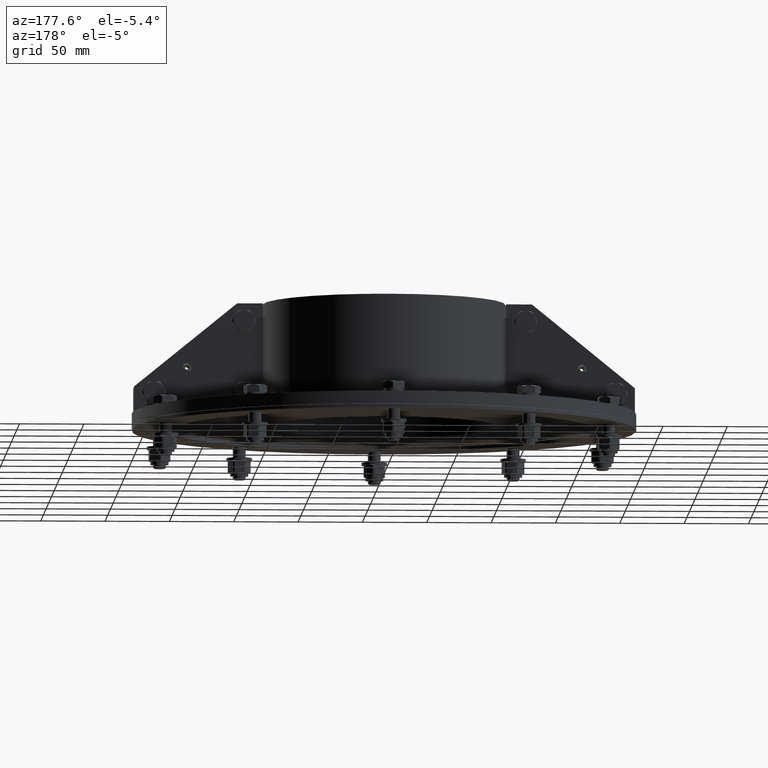
[diagram: clean part render]
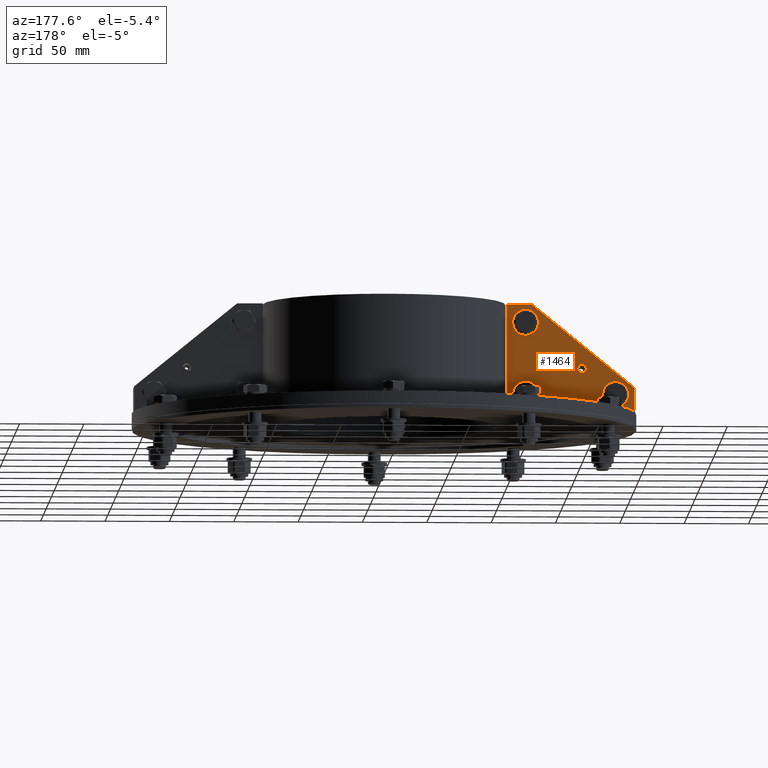
[diagram: same view with one face highlighted and labeled with its STEP entity id]
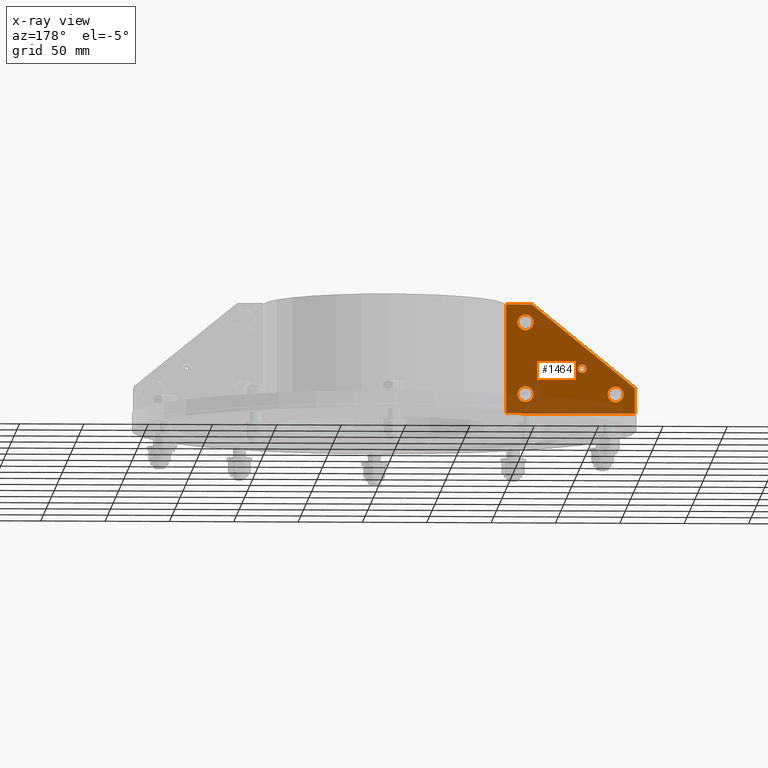
[diagram: x-ray of the same camera — body ghosted, the highlighted face saturated]
A machine part, auxiliary view. The second image highlights one B-rep face of the part: STEP entity #1464.
The next image is the same camera in x-ray: the body ghosted, the highlighted face saturated — about 20% of this face is hidden behind the body in this view.
In plain terms, the highlighted planar face has unit normal (-0, 1, 0).
Its self-contained STEP definition (entity closure, byte-faithful):
#1164=CARTESIAN_POINT('',(21.150000000000002,71.0,5.0));
#1165=VERTEX_POINT('',#1164);
#1166=CARTESIAN_POINT('',(15.0,71.0,5.0));
#1167=DIRECTION('',(0.0,0.0,-1.0));
#1168=DIRECTION('',(-1.0,0.0,0.0));
#1169=AXIS2_PLACEMENT_3D('',#1166,#1167,#1168);
#1170=CIRCLE('',#1169,6.150000000000001);
#1171=EDGE_CURVE('',#1165,#1165,#1170,.T.);
#1192=CARTESIAN_POINT('',(91.150000000000006,15.000000000000002,5.0));
#1193=VERTEX_POINT('',#1192);
#1194=CARTESIAN_POINT('',(85.0,15.000000000000002,5.0));
#1195=DIRECTION('',(0.0,0.0,-1.0));
#1196=DIRECTION('',(-1.0,0.0,0.0));
#1197=AXIS2_PLACEMENT_3D('',#1194,#1195,#1196);
#1198=CIRCLE('',#1197,6.150000000000001);
#1199=EDGE_CURVE('',#1193,#1193,#1198,.T.);
#1220=CARTESIAN_POINT('',(21.150000000000002,15.000000000000002,5.0));
#1221=VERTEX_POINT('',#1220);
#1222=CARTESIAN_POINT('',(15.0,15.000000000000002,5.0));
#1223=DIRECTION('',(0.0,0.0,-1.0));
#1224=DIRECTION('',(-1.0,0.0,0.0));
#1225=AXIS2_PLACEMENT_3D('',#1222,#1223,#1224);
#1226=CIRCLE('',#1225,6.150000000000001);
#1227=EDGE_CURVE('',#1221,#1221,#1226,.T.);
#1248=CARTESIAN_POINT('',(62.350000000000001,35.0,5.0));
#1249=VERTEX_POINT('',#1248);
#1250=CARTESIAN_POINT('',(59.0,35.0,5.0));
#1251=DIRECTION('',(0.0,0.0,-1.0));
#1252=DIRECTION('',(-1.0,0.0,0.0));
#1253=AXIS2_PLACEMENT_3D('',#1250,#1251,#1252);
#1254=CIRCLE('',#1253,3.35);
#1255=EDGE_CURVE('',#1249,#1249,#1254,.T.);
#1325=CARTESIAN_POINT('',(0.0,85.0,5.0));
#1326=VERTEX_POINT('',#1325);
#1327=CARTESIAN_POINT('',(20.0,85.0,5.0));
#1328=VERTEX_POINT('',#1327);
#1329=CARTESIAN_POINT('',(0.0,85.0,5.0));
#1330=DIRECTION('',(1.0,0.0,0.0));
#1331=VECTOR('',#1330,20.0);
#1332=LINE('',#1329,#1331);
#1333=EDGE_CURVE('',#1326,#1328,#1332,.T.);
#1356=CARTESIAN_POINT('',(100.0,20.000000000000018,5.0));
#1357=VERTEX_POINT('',#1356);
#1358=CARTESIAN_POINT('',(20.0,85.0,5.0));
#1359=DIRECTION('',(0.776114000116266,-0.630592625094466,0.0));
#1360=VECTOR('',#1359,103.0776406404415);
#1361=LINE('',#1358,#1360);
#1362=EDGE_CURVE('',#1328,#1357,#1361,.T.);
#1380=CARTESIAN_POINT('',(100.0,1.836970E-014,5.0));
#1381=VERTEX_POINT('',#1380);
#1382=CARTESIAN_POINT('',(100.0,20.000000000000018,5.0));
#1383=DIRECTION('',(0.0,-1.0,0.0));
#1384=VECTOR('',#1383,20.0);
#1385=LINE('',#1382,#1384);
#1386=EDGE_CURVE('',#1357,#1381,#1385,.T.);
#1404=CARTESIAN_POINT('',(0.0,0.0,5.0));
#1405=VERTEX_POINT('',#1404);
#1406=CARTESIAN_POINT('',(100.0,1.836970E-014,5.0));
#1407=DIRECTION('',(-1.0,0.0,0.0));
#1408=VECTOR('',#1407,100.0);
#1409=LINE('',#1406,#1408);
#1410=EDGE_CURVE('',#1381,#1405,#1409,.T.);
#1428=CARTESIAN_POINT('',(0.0,0.0,5.0));
#1429=DIRECTION('',(0.0,1.0,0.0));
#1430=VECTOR('',#1429,85.0);
#1431=LINE('',#1428,#1430);
#1432=EDGE_CURVE('',#1405,#1326,#1431,.T.);
#1440=CARTESIAN_POINT('',(40.797228400869528,33.297228400869542,5.0));
#1441=DIRECTION('',(0.0,0.0,1.0));
#1442=DIRECTION('',(1.0,0.0,0.0));
#1443=AXIS2_PLACEMENT_3D('',#1440,#1441,#1442);
#1444=PLANE('',#1443);
#1445=ORIENTED_EDGE('',*,*,#1333,.F.);
#1446=ORIENTED_EDGE('',*,*,#1432,.F.);
#1447=ORIENTED_EDGE('',*,*,#1410,.F.);
#1448=ORIENTED_EDGE('',*,*,#1386,.F.);
#1449=ORIENTED_EDGE('',*,*,#1362,.F.);
#1450=EDGE_LOOP('',(#1445,#1446,#1447,#1448,#1449));
#1451=FACE_OUTER_BOUND('',#1450,.T.);
#1452=ORIENTED_EDGE('',*,*,#1171,.T.);
#1453=EDGE_LOOP('',(#1452));
#1454=FACE_BOUND('',#1453,.T.);
#1455=ORIENTED_EDGE('',*,*,#1199,.T.);
#1456=EDGE_LOOP('',(#1455));
#1457=FACE_BOUND('',#1456,.T.);
#1458=ORIENTED_EDGE('',*,*,#1227,.T.);
#1459=EDGE_LOOP('',(#1458));
#1460=FACE_BOUND('',#1459,.T.);
#1461=ORIENTED_EDGE('',*,*,#1255,.T.);
#1462=EDGE_LOOP('',(#1461));
#1463=FACE_BOUND('',#1462,.T.);
#1464=ADVANCED_FACE('',(#1451,#1454,#1457,#1460,#1463),#1444,.T.);